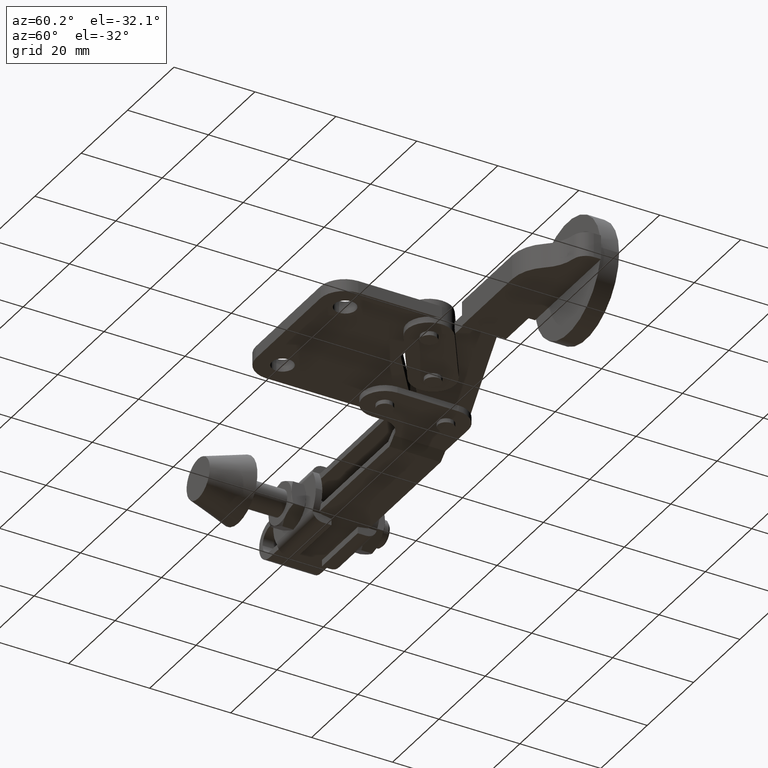
[diagram: clean part render]
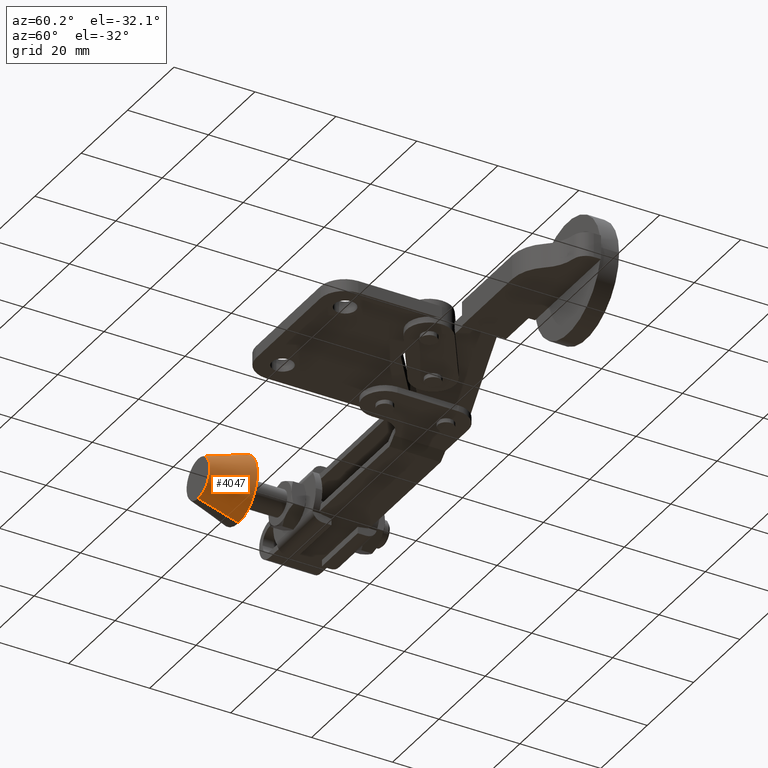
[diagram: same view with one face highlighted and labeled with its STEP entity id]
A machine part, auxiliary view. The second image highlights one B-rep face of the part: STEP entity #4047.
In plain terms, the highlighted conical surface has half-angle 17.223 deg.
Its self-contained STEP definition (entity closure, byte-faithful):
#83 = ORIENTED_EDGE ( 'NONE', *, *, #7840, .F. ) ;
#281 = DIRECTION ( 'NONE',  ( 0.0000000000000000000, 0.9551573261744535900, 0.2960987711140805100 ) ) ;
#614 = AXIS2_PLACEMENT_3D ( 'NONE', #5409, #1077, #6124 ) ;
#835 = LINE ( 'NONE', #7776, #6558 ) ;
#1077 = DIRECTION ( 'NONE',  ( -0.0000000000000000000, -1.000000000000000000, -0.0000000000000000000 ) ) ;
#1430 = VERTEX_POINT ( 'NONE', #3986 ) ;
#3682 = DIRECTION ( 'NONE',  ( -0.0000000000000000000, -1.000000000000000000, -0.0000000000000000000 ) ) ;
#3839 = VECTOR ( 'NONE', #281, 999.9999999999998900 ) ;
#3986 = CARTESIAN_POINT ( 'NONE',  ( -84.14806774414161300, 9.999999999999978700, -8.099999999999999600 ) ) ;
#4047 = ADVANCED_FACE ( 'NONE', ( #5728 ), #4921, .T. ) ;
#4168 = CARTESIAN_POINT ( 'NONE',  ( -84.14806774414161300, 9.999999999999978700, 8.099999999999999600 ) ) ;
#4198 = CARTESIAN_POINT ( 'NONE',  ( -84.14806774414161300, -2.233768202173753600E-014, 5.000000000000000000 ) ) ;
#4283 = CIRCLE ( 'NONE', #8208, 5.000000000000000000 ) ;
#4606 = ORIENTED_EDGE ( 'NONE', *, *, #8624, .T. ) ;
#4636 = CARTESIAN_POINT ( 'NONE',  ( -84.14806774414161300, -2.233768202173753600E-014, 5.000000000000000000 ) ) ;
#4921 = CONICAL_SURFACE ( 'NONE', #9041, 5.000000000000000000, 0.3006056700423954100 ) ;
#5409 = CARTESIAN_POINT ( 'NONE',  ( -84.14806774414161300, 9.999999999999978700, -2.139793548690643700E-016 ) ) ;
#5511 = ORIENTED_EDGE ( 'NONE', *, *, #6903, .F. ) ;
#5728 = FACE_OUTER_BOUND ( 'NONE', #8906, .T. ) ;
#5970 = DIRECTION ( 'NONE',  ( 3.626164122763234500E-017, 0.9551573261744535900, -0.2960987711140805100 ) ) ;
#6021 = ORIENTED_EDGE ( 'NONE', *, *, #6422, .T. ) ;
#6124 = DIRECTION ( 'NONE',  ( 0.0000000000000000000, 0.0000000000000000000, -1.000000000000000000 ) ) ;
#6259 = DIRECTION ( 'NONE',  ( 0.0000000000000000000, 0.0000000000000000000, 1.000000000000000000 ) ) ;
#6298 = VERTEX_POINT ( 'NONE', #6467 ) ;
#6390 = VERTEX_POINT ( 'NONE', #4198 ) ;
#6422 = EDGE_CURVE ( 'NONE', #6298, #1430, #835, .T. ) ;
#6467 = CARTESIAN_POINT ( 'NONE',  ( -84.14806774414161300, -2.233768202173753600E-014, -5.000000000000000000 ) ) ;
#6558 = VECTOR ( 'NONE', #5970, 999.9999999999998900 ) ;
#6903 = EDGE_CURVE ( 'NONE', #6390, #8283, #7874, .T. ) ;
#7776 = CARTESIAN_POINT ( 'NONE',  ( -84.14806774414161300, -2.233768202173753600E-014, -5.000000000000000000 ) ) ;
#7806 = CARTESIAN_POINT ( 'NONE',  ( -84.14806774414161300, -2.233768202173753600E-014, -2.139793548690643700E-016 ) ) ;
#7840 = EDGE_CURVE ( 'NONE', #6298, #6390, #4283, .T. ) ;
#7874 = LINE ( 'NONE', #4636, #3839 ) ;
#7982 = CARTESIAN_POINT ( 'NONE',  ( -84.14806774414161300, -2.233768202173753600E-014, -2.139793548690643700E-016 ) ) ;
#8208 = AXIS2_PLACEMENT_3D ( 'NONE', #7982, #3682, #8693 ) ;
#8283 = VERTEX_POINT ( 'NONE', #4168 ) ;
#8434 = CIRCLE ( 'NONE', #614, 8.099999999999999600 ) ;
#8624 = EDGE_CURVE ( 'NONE', #1430, #8283, #8434, .T. ) ;
#8693 = DIRECTION ( 'NONE',  ( 0.0000000000000000000, 0.0000000000000000000, -1.000000000000000000 ) ) ;
#8906 = EDGE_LOOP ( 'NONE', ( #83, #6021, #4606, #5511 ) ) ;
#8949 = DIRECTION ( 'NONE',  ( 0.0000000000000000000, 1.000000000000000000, 0.0000000000000000000 ) ) ;
#9041 = AXIS2_PLACEMENT_3D ( 'NONE', #7806, #8949, #6259 ) ;